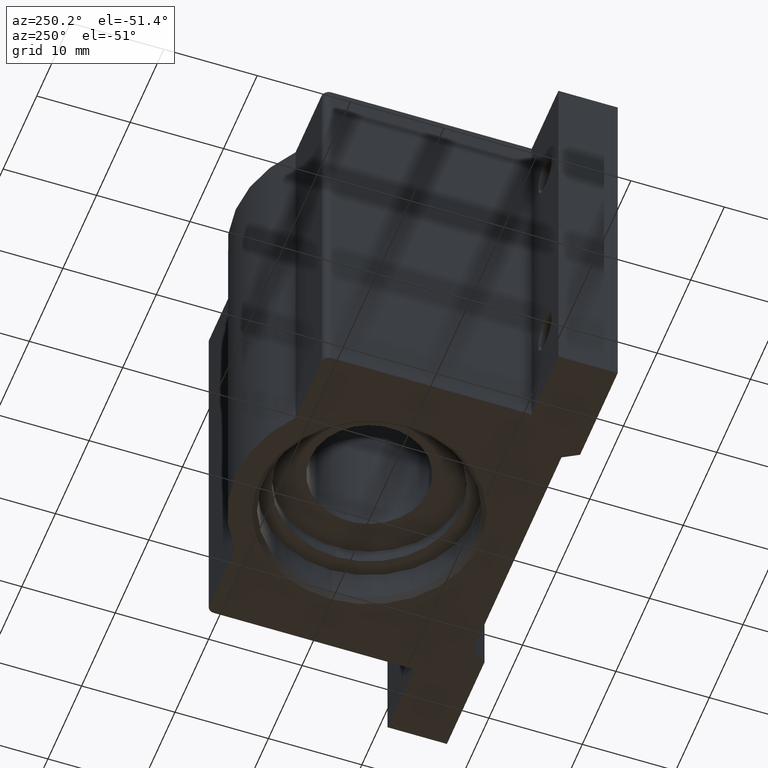
[diagram: clean part render]
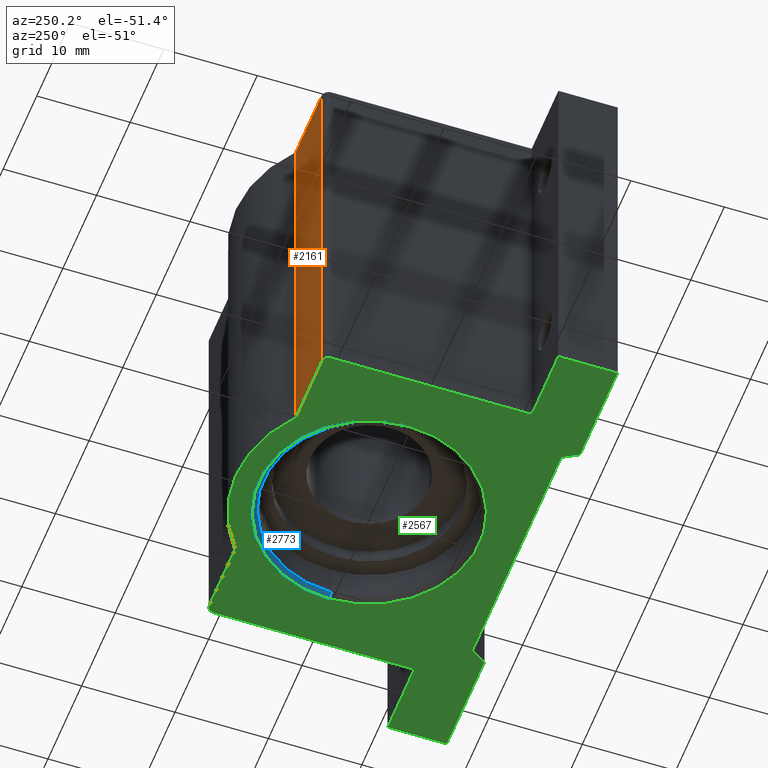
[diagram: same view with three faces highlighted in distinct colors, each labeled with its STEP entity id]
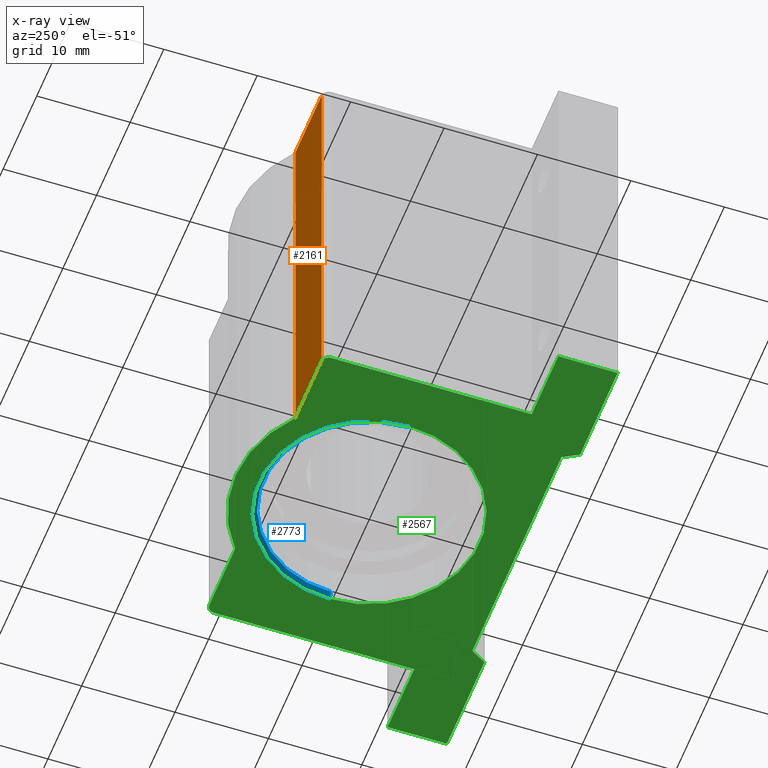
[diagram: x-ray of the same camera — body ghosted, the three highlighted faces saturated]
A machine part, auxiliary view with three faces highlighted in distinct colors.
The next image is the same camera in x-ray (body ghosted, the three faces saturated) — at least one of them is partly hidden behind the body in this view.
Their STEP definitions:

[orange] entity #2161 — the highlighted planar face has unit normal (0, -1, 0).
#418 = CARTESIAN_POINT ( 'NONE',  ( 0.0000000000000000000, 0.4379999999999999449, 0.8439999999999997504 ) ) ;
#452 = LINE ( 'NONE', #3311, #1480 ) ;
#586 = DIRECTION ( 'NONE',  ( 0.0000000000000000000, 0.0000000000000000000, 1.000000000000000000 ) ) ;
#721 = AXIS2_PLACEMENT_3D ( 'NONE', #865, #3041, #3618 ) ;
#736 = ORIENTED_EDGE ( 'NONE', *, *, #2154, .F. ) ;
#865 = CARTESIAN_POINT ( 'NONE',  ( 0.0000000000000000000, 0.4379999999999999449, -0.8440000000000000835 ) ) ;
#1072 = VERTEX_POINT ( 'NONE', #3710 ) ;
#1075 = VECTOR ( 'NONE', #3693, 39.37007874015748143 ) ;
#1076 = LINE ( 'NONE', #418, #1351 ) ;
#1274 = LINE ( 'NONE', #3595, #3068 ) ;
#1351 = VECTOR ( 'NONE', #2251, 39.37007874015748143 ) ;
#1438 = CARTESIAN_POINT ( 'NONE',  ( -0.3537301231164801107, 0.4379999999999999449, -0.8440000000000000835 ) ) ;
#1480 = VECTOR ( 'NONE', #3351, 39.37007874015748143 ) ;
#1720 = ORIENTED_EDGE ( 'NONE', *, *, #2740, .T. ) ;
#1780 = FACE_OUTER_BOUND ( 'NONE', #2690, .T. ) ;
#1966 = VERTEX_POINT ( 'NONE', #2541 ) ;
#2154 = EDGE_CURVE ( 'NONE', #1072, #3235, #452, .T. ) ;
#2161 = ADVANCED_FACE ( 'NONE', ( #1780 ), #2692, .F. ) ;
#2251 = DIRECTION ( 'NONE',  ( 1.000000000000000000, 0.0000000000000000000, 0.0000000000000000000 ) ) ;
#2284 = ORIENTED_EDGE ( 'NONE', *, *, #2487, .T. ) ;
#2487 = EDGE_CURVE ( 'NONE', #2662, #1966, #1076, .T. ) ;
#2541 = CARTESIAN_POINT ( 'NONE',  ( -0.3537301231164801107, 0.4379999999999999449, 0.8439999999999997504 ) ) ;
#2632 = CARTESIAN_POINT ( 'NONE',  ( -0.6574999999999999734, 0.4379999999999999449, 0.8439999999999997504 ) ) ;
#2662 = VERTEX_POINT ( 'NONE', #2632 ) ;
#2690 = EDGE_LOOP ( 'NONE', ( #736, #1720, #2284, #2829 ) ) ;
#2692 = PLANE ( 'NONE',  #721 ) ;
#2740 = EDGE_CURVE ( 'NONE', #1072, #2662, #1274, .T. ) ;
#2829 = ORIENTED_EDGE ( 'NONE', *, *, #3816, .F. ) ;
#3041 = DIRECTION ( 'NONE',  ( 0.0000000000000000000, -1.000000000000000000, 0.0000000000000000000 ) ) ;
#3068 = VECTOR ( 'NONE', #586, 39.37007874015748143 ) ;
#3235 = VERTEX_POINT ( 'NONE', #1438 ) ;
#3311 = CARTESIAN_POINT ( 'NONE',  ( 0.0000000000000000000, 0.4379999999999999449, -0.8440000000000000835 ) ) ;
#3351 = DIRECTION ( 'NONE',  ( 1.000000000000000000, 0.0000000000000000000, 0.0000000000000000000 ) ) ;
#3595 = CARTESIAN_POINT ( 'NONE',  ( -0.6574999999999999734, 0.4379999999999999449, -0.8440000000000000835 ) ) ;
#3618 = DIRECTION ( 'NONE',  ( 0.0000000000000000000, -0.0000000000000000000, -1.000000000000000000 ) ) ;
#3675 = CARTESIAN_POINT ( 'NONE',  ( -0.3537301231164801107, 0.4379999999999999449, -0.8440000000000000835 ) ) ;
#3693 = DIRECTION ( 'NONE',  ( 0.0000000000000000000, 0.0000000000000000000, 1.000000000000000000 ) ) ;
#3710 = CARTESIAN_POINT ( 'NONE',  ( -0.6574999999999999734, 0.4379999999999999449, -0.8440000000000000835 ) ) ;
#3816 = EDGE_CURVE ( 'NONE', #3235, #1966, #3881, .T. ) ;
#3881 = LINE ( 'NONE', #3675, #1075 ) ;

[blue] entity #2773 — the highlighted conical surface has half-angle 45 deg.
#29 = ORIENTED_EDGE ( 'NONE', *, *, #553, .F. ) ;
#59 = CIRCLE ( 'NONE', #1742, 0.4649999999999998024 ) ;
#317 = EDGE_CURVE ( 'NONE', #2020, #1256, #1555, .T. ) ;
#463 = FACE_OUTER_BOUND ( 'NONE', #3440, .T. ) ;
#530 = CARTESIAN_POINT ( 'NONE',  ( 0.0000000000000000000, 0.0000000000000000000, -0.8440000000000000835 ) ) ;
#553 = EDGE_CURVE ( 'NONE', #3866, #3649, #3462, .T. ) ;
#603 = VECTOR ( 'NONE', #2221, 39.37007874015748854 ) ;
#943 = CARTESIAN_POINT ( 'NONE',  ( 0.4450000000000000067, 0.0000000000000000000, -0.8240000000000002878 ) ) ;
#956 = CARTESIAN_POINT ( 'NONE',  ( 0.0000000000000000000, 0.0000000000000000000, -0.8240000000000002878 ) ) ;
#992 = CARTESIAN_POINT ( 'NONE',  ( 0.4649999999999998024, 5.694607616035189665E-17, -0.8440000000000000835 ) ) ;
#1071 = CARTESIAN_POINT ( 'NONE',  ( -0.4649999999999998024, 0.0000000000000000000, -0.8440000000000000835 ) ) ;
#1256 = VERTEX_POINT ( 'NONE', #1071 ) ;
#1444 = DIRECTION ( 'NONE',  ( -0.7071067811865474617, 0.0000000000000000000, -0.7071067811865474617 ) ) ;
#1555 = LINE ( 'NONE', #1804, #2282 ) ;
#1558 = DIRECTION ( 'NONE',  ( 1.000000000000000000, 0.0000000000000000000, 0.0000000000000000000 ) ) ;
#1683 = CARTESIAN_POINT ( 'NONE',  ( -0.4450000000000000067, 5.449678256205722031E-17, -0.8240000000000002878 ) ) ;
#1742 = AXIS2_PLACEMENT_3D ( 'NONE', #530, #2374, #2388 ) ;
#1804 = CARTESIAN_POINT ( 'NONE',  ( -0.4649999999999998024, 0.0000000000000000000, -0.8440000000000000835 ) ) ;
#2020 = VERTEX_POINT ( 'NONE', #1683 ) ;
#2074 = DIRECTION ( 'NONE',  ( -0.0000000000000000000, -0.0000000000000000000, -1.000000000000000000 ) ) ;
#2178 = EDGE_CURVE ( 'NONE', #3649, #1256, #59, .T. ) ;
#2221 = DIRECTION ( 'NONE',  ( 0.7071067811865474617, 8.659560562354932858E-17, -0.7071067811865474617 ) ) ;
#2282 = VECTOR ( 'NONE', #1444, 39.37007874015748854 ) ;
#2323 = CONICAL_SURFACE ( 'NONE', #2547, 0.4649999999999998024, 0.7853981633974482790 ) ;
#2374 = DIRECTION ( 'NONE',  ( -0.0000000000000000000, 0.0000000000000000000, 1.000000000000000000 ) ) ;
#2388 = DIRECTION ( 'NONE',  ( 1.000000000000000000, 0.0000000000000000000, 0.0000000000000000000 ) ) ;
#2518 = CIRCLE ( 'NONE', #2732, 0.4450000000000000067 ) ;
#2547 = AXIS2_PLACEMENT_3D ( 'NONE', #2715, #2074, #3005 ) ;
#2715 = CARTESIAN_POINT ( 'NONE',  ( 0.0000000000000000000, 0.0000000000000000000, -0.8440000000000000835 ) ) ;
#2732 = AXIS2_PLACEMENT_3D ( 'NONE', #956, #3107, #1558 ) ;
#2773 = ADVANCED_FACE ( 'NONE', ( #463 ), #2323, .F. ) ;
#3005 = DIRECTION ( 'NONE',  ( -1.000000000000000000, 0.0000000000000000000, 0.0000000000000000000 ) ) ;
#3107 = DIRECTION ( 'NONE',  ( -0.0000000000000000000, -0.0000000000000000000, -1.000000000000000000 ) ) ;
#3242 = CARTESIAN_POINT ( 'NONE',  ( 0.4649999999999998024, 5.694607616035189665E-17, -0.8440000000000000835 ) ) ;
#3440 = EDGE_LOOP ( 'NONE', ( #29, #3670, #3470, #3828 ) ) ;
#3462 = LINE ( 'NONE', #992, #603 ) ;
#3470 = ORIENTED_EDGE ( 'NONE', *, *, #317, .T. ) ;
#3649 = VERTEX_POINT ( 'NONE', #3242 ) ;
#3670 = ORIENTED_EDGE ( 'NONE', *, *, #3898, .F. ) ;
#3828 = ORIENTED_EDGE ( 'NONE', *, *, #2178, .F. ) ;
#3866 = VERTEX_POINT ( 'NONE', #943 ) ;
#3898 = EDGE_CURVE ( 'NONE', #2020, #3866, #2518, .T. ) ;

[green] entity #2567 — the highlighted planar face has unit normal (0, 0, 1).
#32 = LINE ( 'NONE', #179, #3220 ) ;
#59 = CIRCLE ( 'NONE', #1742, 0.4649999999999998024 ) ;
#63 = CIRCLE ( 'NONE', #3772, 0.4649999999999998024 ) ;
#75 = DIRECTION ( 'NONE',  ( 0.0000000000000000000, -1.000000000000000000, 0.0000000000000000000 ) ) ;
#104 = DIRECTION ( 'NONE',  ( 1.000000000000000000, 0.0000000000000000000, 0.0000000000000000000 ) ) ;
#137 = CARTESIAN_POINT ( 'NONE',  ( 0.0000000000000000000, 0.0000000000000000000, -0.8440000000000000835 ) ) ;
#179 = CARTESIAN_POINT ( 'NONE',  ( -1.000000000000000000, 0.0000000000000000000, -0.8440000000000000835 ) ) ;
#182 = EDGE_CURVE ( 'NONE', #3921, #2923, #32, .T. ) ;
#221 = CIRCLE ( 'NONE', #3492, 0.02999999999999995379 ) ;
#229 = DIRECTION ( 'NONE',  ( 1.000000000000000000, 0.0000000000000000000, 0.0000000000000000000 ) ) ;
#272 = LINE ( 'NONE', #2430, #3260 ) ;
#296 = CARTESIAN_POINT ( 'NONE',  ( 0.6875000000000000000, -0.4369999999999997220, -0.8440000000000000835 ) ) ;
#298 = VERTEX_POINT ( 'NONE', #2112 ) ;
#326 = CARTESIAN_POINT ( 'NONE',  ( -0.6875000000000000000, -0.4369999999999999996, -0.8440000000000000835 ) ) ;
#341 = EDGE_CURVE ( 'NONE', #1425, #3894, #3022, .T. ) ;
#417 = EDGE_CURVE ( 'NONE', #3193, #298, #2525, .T. ) ;
#430 = DIRECTION ( 'NONE',  ( 1.000000000000000000, 0.0000000000000000000, 0.0000000000000000000 ) ) ;
#452 = LINE ( 'NONE', #3311, #1480 ) ;
#483 = CARTESIAN_POINT ( 'NONE',  ( 0.6875000000000000000, 0.0000000000000000000, -0.8440000000000000835 ) ) ;
#523 = DIRECTION ( 'NONE',  ( 1.000000000000000000, 4.370956789862821643E-16, 0.0000000000000000000 ) ) ;
#530 = CARTESIAN_POINT ( 'NONE',  ( 0.0000000000000000000, 0.0000000000000000000, -0.8440000000000000835 ) ) ;
#599 = FACE_OUTER_BOUND ( 'NONE', #3050, .T. ) ;
#631 = CARTESIAN_POINT ( 'NONE',  ( -0.5219252271188812298, -0.6220000000000001084, -0.8440000000000000835 ) ) ;
#642 = VECTOR ( 'NONE', #229, 39.37007874015748143 ) ;
#654 = CIRCLE ( 'NONE', #2137, 0.02999999999999995379 ) ;
#734 = VECTOR ( 'NONE', #3233, 39.37007874015748143 ) ;
#737 = LINE ( 'NONE', #2604, #642 ) ;
#744 = EDGE_CURVE ( 'NONE', #1999, #3235, #3020, .T. ) ;
#772 = DIRECTION ( 'NONE',  ( -0.0000000000000000000, 0.0000000000000000000, 1.000000000000000000 ) ) ;
#887 = VECTOR ( 'NONE', #1055, 39.37007874015748143 ) ;
#907 = DIRECTION ( 'NONE',  ( -0.0000000000000000000, 0.0000000000000000000, 1.000000000000000000 ) ) ;
#922 = ORIENTED_EDGE ( 'NONE', *, *, #417, .T. ) ;
#928 = DIRECTION ( 'NONE',  ( -0.5000000000000036637, 0.8660254037844364872, -0.0000000000000000000 ) ) ;
#940 = CARTESIAN_POINT ( 'NONE',  ( -1.000000000000000000, -0.4370000000000001661, -0.8440000000000003055 ) ) ;
#981 = LINE ( 'NONE', #3909, #3628 ) ;
#996 = ORIENTED_EDGE ( 'NONE', *, *, #3602, .T. ) ;
#1055 = DIRECTION ( 'NONE',  ( -0.5000000000000036637, -0.8660254037844364872, 0.0000000000000000000 ) ) ;
#1063 = ORIENTED_EDGE ( 'NONE', *, *, #3622, .T. ) ;
#1071 = CARTESIAN_POINT ( 'NONE',  ( -0.4649999999999998024, 0.0000000000000000000, -0.8440000000000000835 ) ) ;
#1072 = VERTEX_POINT ( 'NONE', #3710 ) ;
#1081 = VECTOR ( 'NONE', #1127, 39.37007874015748143 ) ;
#1111 = DIRECTION ( 'NONE',  ( 1.000000000000000000, 0.0000000000000000000, 0.0000000000000000000 ) ) ;
#1127 = DIRECTION ( 'NONE',  ( -1.000000000000000000, 0.0000000000000000000, -0.0000000000000000000 ) ) ;
#1182 = CARTESIAN_POINT ( 'NONE',  ( 0.0000000000000000000, 0.0000000000000000000, -0.8440000000000000835 ) ) ;
#1210 = ORIENTED_EDGE ( 'NONE', *, *, #2044, .T. ) ;
#1213 = VERTEX_POINT ( 'NONE', #326 ) ;
#1238 = EDGE_CURVE ( 'NONE', #3894, #1514, #3306, .T. ) ;
#1243 = CARTESIAN_POINT ( 'NONE',  ( 0.0000000000000000000, 0.0000000000000000000, -0.8440000000000000835 ) ) ;
#1256 = VERTEX_POINT ( 'NONE', #1071 ) ;
#1343 = DIRECTION ( 'NONE',  ( 1.000000000000000000, 0.0000000000000000000, 0.0000000000000000000 ) ) ;
#1348 = EDGE_CURVE ( 'NONE', #2923, #1213, #981, .T. ) ;
#1366 = PLANE ( 'NONE',  #1903 ) ;
#1425 = VERTEX_POINT ( 'NONE', #2680 ) ;
#1438 = CARTESIAN_POINT ( 'NONE',  ( -0.3537301231164801107, 0.4379999999999999449, -0.8440000000000000835 ) ) ;
#1458 = ORIENTED_EDGE ( 'NONE', *, *, #341, .T. ) ;
#1460 = DIRECTION ( 'NONE',  ( -1.000000000000000000, -1.308543758626375904E-16, 0.0000000000000000000 ) ) ;
#1480 = VECTOR ( 'NONE', #3351, 39.37007874015748143 ) ;
#1514 = VERTEX_POINT ( 'NONE', #1989 ) ;
#1582 = EDGE_CURVE ( 'NONE', #2180, #1072, #221, .T. ) ;
#1685 = LINE ( 'NONE', #2886, #3001 ) ;
#1705 = CARTESIAN_POINT ( 'NONE',  ( 0.0000000000000000000, -0.6870000000000000551, -0.8440000000000000835 ) ) ;
#1742 = AXIS2_PLACEMENT_3D ( 'NONE', #530, #2374, #2388 ) ;
#1785 = LINE ( 'NONE', #3970, #2707 ) ;
#1829 = CARTESIAN_POINT ( 'NONE',  ( 1.000000000000000000, -0.4369999999999997220, -0.8440000000000000835 ) ) ;
#1865 = ORIENTED_EDGE ( 'NONE', *, *, #3872, .T. ) ;
#1903 = AXIS2_PLACEMENT_3D ( 'NONE', #137, #772, #104 ) ;
#1970 = EDGE_CURVE ( 'NONE', #3249, #3193, #1685, .T. ) ;
#1989 = CARTESIAN_POINT ( 'NONE',  ( -0.5594529946162074552, -0.6870000000000003881, -0.8440000000000000835 ) ) ;
#1991 = CARTESIAN_POINT ( 'NONE',  ( 0.3537301231164801107, 0.4379999999999999449, -0.8440000000000000835 ) ) ;
#1999 = VERTEX_POINT ( 'NONE', #1991 ) ;
#2008 = DIRECTION ( 'NONE',  ( 0.0000000000000000000, 1.000000000000000000, 0.0000000000000000000 ) ) ;
#2044 = EDGE_CURVE ( 'NONE', #1213, #2180, #2359, .T. ) ;
#2080 = LINE ( 'NONE', #1705, #1081 ) ;
#2112 = CARTESIAN_POINT ( 'NONE',  ( 0.5594529946162074552, -0.6870000000000000551, -0.8440000000000000835 ) ) ;
#2120 = CARTESIAN_POINT ( 'NONE',  ( -0.6574999999999999734, 0.4079999999999999183, -0.8440000000000000835 ) ) ;
#2137 = AXIS2_PLACEMENT_3D ( 'NONE', #2578, #2871, #430 ) ;
#2147 = ORIENTED_EDGE ( 'NONE', *, *, #1348, .T. ) ;
#2154 = EDGE_CURVE ( 'NONE', #1072, #3235, #452, .T. ) ;
#2167 = ORIENTED_EDGE ( 'NONE', *, *, #2178, .T. ) ;
#2169 = DIRECTION ( 'NONE',  ( -0.0000000000000000000, 0.0000000000000000000, 1.000000000000000000 ) ) ;
#2178 = EDGE_CURVE ( 'NONE', #3649, #1256, #59, .T. ) ;
#2180 = VERTEX_POINT ( 'NONE', #3949 ) ;
#2226 = VECTOR ( 'NONE', #3880, 39.37007874015748143 ) ;
#2236 = VECTOR ( 'NONE', #3711, 39.37007874015748143 ) ;
#2237 = VECTOR ( 'NONE', #1460, 39.37007874015748143 ) ;
#2342 = ORIENTED_EDGE ( 'NONE', *, *, #2519, .T. ) ;
#2359 = LINE ( 'NONE', #2971, #734 ) ;
#2373 = DIRECTION ( 'NONE',  ( 1.000000000000000000, 0.0000000000000000000, 0.0000000000000000000 ) ) ;
#2374 = DIRECTION ( 'NONE',  ( -0.0000000000000000000, 0.0000000000000000000, 1.000000000000000000 ) ) ;
#2386 = VERTEX_POINT ( 'NONE', #296 ) ;
#2388 = DIRECTION ( 'NONE',  ( 1.000000000000000000, 0.0000000000000000000, 0.0000000000000000000 ) ) ;
#2409 = CARTESIAN_POINT ( 'NONE',  ( 8.139142178656058708E-17, -0.6220000000000001084, -0.8440000000000000835 ) ) ;
#2430 = CARTESIAN_POINT ( 'NONE',  ( 0.1221100197621973749, 0.07050025278045586596, -0.8440000000000000835 ) ) ;
#2440 = ORIENTED_EDGE ( 'NONE', *, *, #1970, .T. ) ;
#2454 = CARTESIAN_POINT ( 'NONE',  ( 0.0000000000000000000, -0.6870000000000000551, -0.8440000000000000835 ) ) ;
#2468 = LINE ( 'NONE', #483, #2226 ) ;
#2519 = EDGE_CURVE ( 'NONE', #3241, #3845, #654, .T. ) ;
#2525 = LINE ( 'NONE', #2454, #2236 ) ;
#2567 = ADVANCED_FACE ( 'NONE', ( #2964, #599 ), #1366, .F. ) ;
#2578 = CARTESIAN_POINT ( 'NONE',  ( 0.6574999999999999734, 0.4079999999999999183, -0.8440000000000000835 ) ) ;
#2604 = CARTESIAN_POINT ( 'NONE',  ( 0.0000000000000000000, 0.4379999999999999449, -0.8440000000000000835 ) ) ;
#2680 = CARTESIAN_POINT ( 'NONE',  ( 0.5219252271188813408, -0.6219999999999999973, -0.8440000000000000835 ) ) ;
#2706 = EDGE_LOOP ( 'NONE', ( #1865, #2167 ) ) ;
#2707 = VECTOR ( 'NONE', #2373, 39.37007874015748143 ) ;
#2755 = CARTESIAN_POINT ( 'NONE',  ( 0.6875000000000000000, 0.4079999999999999183, -0.8440000000000000835 ) ) ;
#2871 = DIRECTION ( 'NONE',  ( 0.0000000000000000000, -0.0000000000000000000, -1.000000000000000000 ) ) ;
#2886 = CARTESIAN_POINT ( 'NONE',  ( 1.000000000000000000, 0.0000000000000000000, -0.8440000000000000835 ) ) ;
#2890 = ORIENTED_EDGE ( 'NONE', *, *, #2990, .T. ) ;
#2923 = VERTEX_POINT ( 'NONE', #940 ) ;
#2964 = FACE_BOUND ( 'NONE', #2706, .T. ) ;
#2968 = AXIS2_PLACEMENT_3D ( 'NONE', #1182, #907, #1111 ) ;
#2971 = CARTESIAN_POINT ( 'NONE',  ( -0.6875000000000000000, 0.0000000000000000000, -0.8440000000000000835 ) ) ;
#2990 = EDGE_CURVE ( 'NONE', #1514, #3921, #2080, .T. ) ;
#3001 = VECTOR ( 'NONE', #75, 39.37007874015748143 ) ;
#3020 = CIRCLE ( 'NONE', #2968, 0.5630000000000001670 ) ;
#3022 = LINE ( 'NONE', #2409, #2237 ) ;
#3045 = ORIENTED_EDGE ( 'NONE', *, *, #3923, .T. ) ;
#3050 = EDGE_LOOP ( 'NONE', ( #2440, #922, #3045, #1458, #3997, #2890, #3813, #2147, #1210, #3787, #3743, #3575, #1063, #2342, #996, #3994 ) ) ;
#3070 = DIRECTION ( 'NONE',  ( 1.000000000000000000, 0.0000000000000000000, 0.0000000000000000000 ) ) ;
#3081 = CARTESIAN_POINT ( 'NONE',  ( -1.000000000000000000, -0.6870000000000000551, -0.8440000000000000835 ) ) ;
#3193 = VERTEX_POINT ( 'NONE', #3378 ) ;
#3220 = VECTOR ( 'NONE', #2008, 39.37007874015748143 ) ;
#3233 = DIRECTION ( 'NONE',  ( 0.0000000000000000000, 1.000000000000000000, -0.0000000000000000000 ) ) ;
#3235 = VERTEX_POINT ( 'NONE', #1438 ) ;
#3241 = VERTEX_POINT ( 'NONE', #3734 ) ;
#3242 = CARTESIAN_POINT ( 'NONE',  ( 0.4649999999999998024, 5.694607616035189665E-17, -0.8440000000000000835 ) ) ;
#3249 = VERTEX_POINT ( 'NONE', #1829 ) ;
#3260 = VECTOR ( 'NONE', #928, 39.37007874015748143 ) ;
#3306 = LINE ( 'NONE', #3699, #887 ) ;
#3311 = CARTESIAN_POINT ( 'NONE',  ( 0.0000000000000000000, 0.4379999999999999449, -0.8440000000000000835 ) ) ;
#3351 = DIRECTION ( 'NONE',  ( 1.000000000000000000, 0.0000000000000000000, 0.0000000000000000000 ) ) ;
#3378 = CARTESIAN_POINT ( 'NONE',  ( 1.000000000000000000, -0.6870000000000000551, -0.8440000000000000835 ) ) ;
#3492 = AXIS2_PLACEMENT_3D ( 'NONE', #2120, #3503, #1343 ) ;
#3503 = DIRECTION ( 'NONE',  ( 0.0000000000000000000, -0.0000000000000000000, -1.000000000000000000 ) ) ;
#3575 = ORIENTED_EDGE ( 'NONE', *, *, #744, .F. ) ;
#3602 = EDGE_CURVE ( 'NONE', #3845, #2386, #2468, .T. ) ;
#3622 = EDGE_CURVE ( 'NONE', #1999, #3241, #737, .T. ) ;
#3628 = VECTOR ( 'NONE', #523, 39.37007874015748143 ) ;
#3649 = VERTEX_POINT ( 'NONE', #3242 ) ;
#3699 = CARTESIAN_POINT ( 'NONE',  ( -0.1221100197621972083, 0.07050025278045576882, -0.8440000000000000835 ) ) ;
#3710 = CARTESIAN_POINT ( 'NONE',  ( -0.6574999999999999734, 0.4379999999999999449, -0.8440000000000000835 ) ) ;
#3711 = DIRECTION ( 'NONE',  ( -1.000000000000000000, 0.0000000000000000000, -0.0000000000000000000 ) ) ;
#3734 = CARTESIAN_POINT ( 'NONE',  ( 0.6574999999999999734, 0.4379999999999999449, -0.8440000000000000835 ) ) ;
#3743 = ORIENTED_EDGE ( 'NONE', *, *, #2154, .T. ) ;
#3772 = AXIS2_PLACEMENT_3D ( 'NONE', #1243, #2169, #3070 ) ;
#3787 = ORIENTED_EDGE ( 'NONE', *, *, #1582, .T. ) ;
#3788 = EDGE_CURVE ( 'NONE', #2386, #3249, #1785, .T. ) ;
#3813 = ORIENTED_EDGE ( 'NONE', *, *, #182, .T. ) ;
#3845 = VERTEX_POINT ( 'NONE', #2755 ) ;
#3872 = EDGE_CURVE ( 'NONE', #1256, #3649, #63, .T. ) ;
#3880 = DIRECTION ( 'NONE',  ( 0.0000000000000000000, -1.000000000000000000, 0.0000000000000000000 ) ) ;
#3894 = VERTEX_POINT ( 'NONE', #631 ) ;
#3909 = CARTESIAN_POINT ( 'NONE',  ( 1.910108117170051860E-16, -0.4369999999999997220, -0.8440000000000000835 ) ) ;
#3921 = VERTEX_POINT ( 'NONE', #3081 ) ;
#3923 = EDGE_CURVE ( 'NONE', #298, #1425, #272, .T. ) ;
#3949 = CARTESIAN_POINT ( 'NONE',  ( -0.6875000000000000000, 0.4079999999999999183, -0.8440000000000000835 ) ) ;
#3970 = CARTESIAN_POINT ( 'NONE',  ( 0.0000000000000000000, -0.4369999999999997220, -0.8440000000000000835 ) ) ;
#3994 = ORIENTED_EDGE ( 'NONE', *, *, #3788, .T. ) ;
#3997 = ORIENTED_EDGE ( 'NONE', *, *, #1238, .T. ) ;